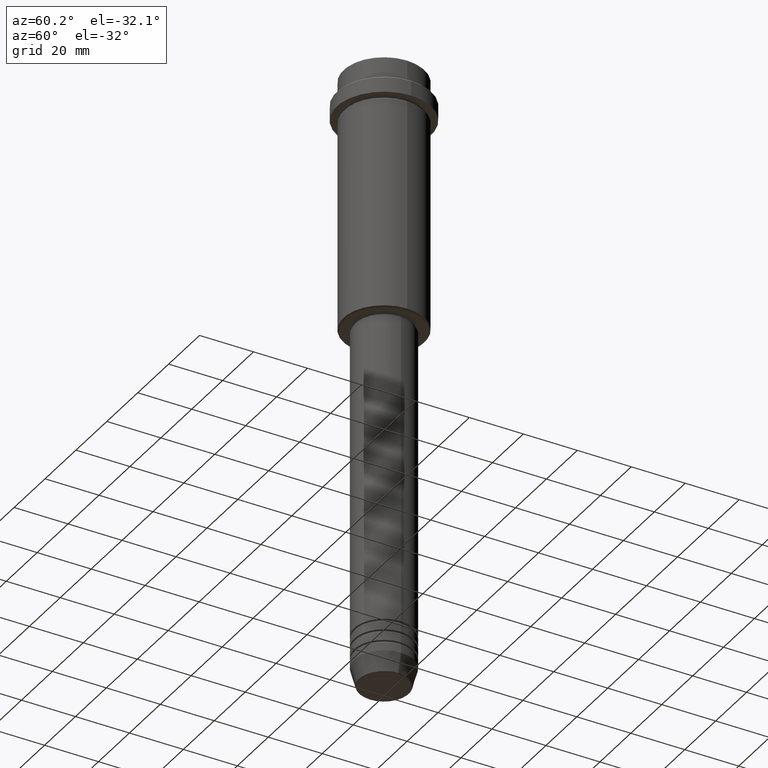
[diagram: clean part render]
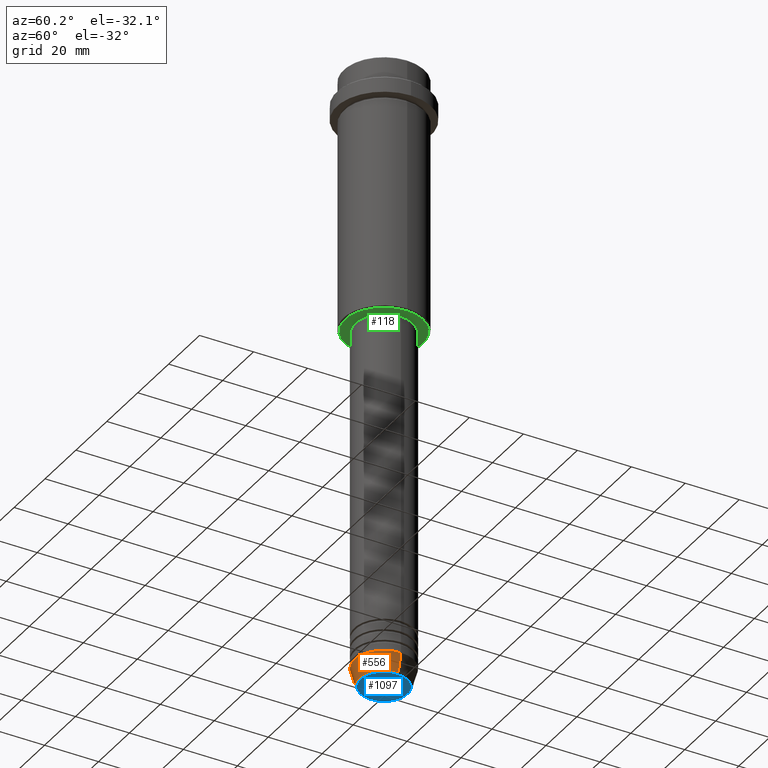
[diagram: same view with three faces highlighted in distinct colors, each labeled with its STEP entity id]
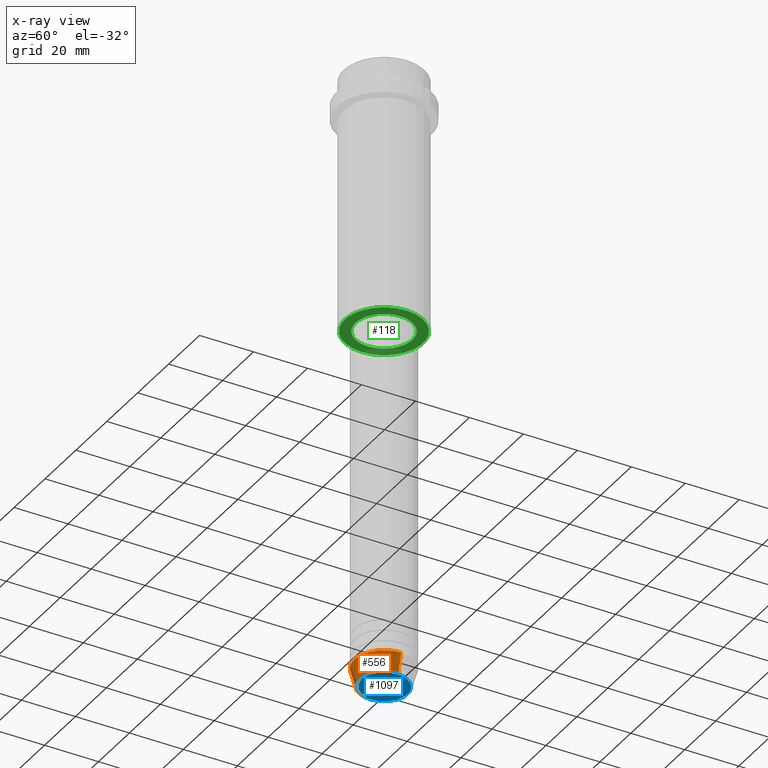
[diagram: x-ray of the same camera — body ghosted, the three highlighted faces saturated]
A machine part, auxiliary view with three faces highlighted in distinct colors.
The next image is the same camera in x-ray (body ghosted, the three faces saturated) — at least one of them is partly hidden behind the body in this view.
Their STEP definitions:

[orange] entity #556 — the highlighted conical surface has half-angle 15 deg.
#39 = AXIS2_PLACEMENT_3D ( 'NONE', #1291, #1159, #613 ) ;
#44 = AXIS2_PLACEMENT_3D ( 'NONE', #435, #95, #1314 ) ;
#95 = DIRECTION ( 'NONE',  ( -0.000000000000000000, -0.000000000000000000, 1.000000000000000000 ) ) ;
#148 = LINE ( 'NONE', #1361, #947 ) ;
#210 = CARTESIAN_POINT ( 'NONE',  ( -11.00000000000000000, 1.347111479062088405E-15, -222.9999999999999716 ) ) ;
#232 = CARTESIAN_POINT ( 'NONE',  ( -11.00000000000000000, 1.347111479062088405E-15, -222.9999999999999716 ) ) ;
#274 = CARTESIAN_POINT ( 'NONE',  ( 0.000000000000000000, 0.000000000000000000, -222.9999999999999716 ) ) ;
#383 = DIRECTION ( 'NONE',  ( 0.2588190451025213501, 0.000000000000000000, 0.9659258262890680902 ) ) ;
#417 = CARTESIAN_POINT ( 'NONE',  ( 9.223655072137189492, 0.000000000000000000, -229.6294095225512422 ) ) ;
#435 = CARTESIAN_POINT ( 'NONE',  ( 0.000000000000000000, 0.000000000000000000, -222.9999999999999716 ) ) ;
#457 = ORIENTED_EDGE ( 'NONE', *, *, #722, .T. ) ;
#466 = CIRCLE ( 'NONE', #39, 9.223655072137189492 ) ;
#482 = DIRECTION ( 'NONE',  ( -0.000000000000000000, -0.000000000000000000, 1.000000000000000000 ) ) ;
#556 = ADVANCED_FACE ( 'NONE', ( #1355 ), #1254, .T. ) ;
#565 = VERTEX_POINT ( 'NONE', #1164 ) ;
#613 = DIRECTION ( 'NONE',  ( 1.000000000000000000, 0.000000000000000000, 0.000000000000000000 ) ) ;
#618 = VERTEX_POINT ( 'NONE', #210 ) ;
#670 = EDGE_CURVE ( 'NONE', #1249, #671, #148, .T. ) ;
#671 = VERTEX_POINT ( 'NONE', #1264 ) ;
#685 = ORIENTED_EDGE ( 'NONE', *, *, #1275, .F. ) ;
#722 = EDGE_CURVE ( 'NONE', #565, #1249, #466, .T. ) ;
#740 = CIRCLE ( 'NONE', #44, 11.00000000000000000 ) ;
#808 = AXIS2_PLACEMENT_3D ( 'NONE', #274, #482, #1150 ) ;
#835 = EDGE_CURVE ( 'NONE', #565, #618, #1219, .T. ) ;
#943 = ORIENTED_EDGE ( 'NONE', *, *, #835, .F. ) ;
#947 = VECTOR ( 'NONE', #383, 1000.000000000000000 ) ;
#1010 = DIRECTION ( 'NONE',  ( -0.2588190451025213501, 3.169619151431772337E-17, 0.9659258262890680902 ) ) ;
#1042 = VECTOR ( 'NONE', #1010, 1000.000000000000000 ) ;
#1150 = DIRECTION ( 'NONE',  ( 1.000000000000000000, 0.000000000000000000, 0.000000000000000000 ) ) ;
#1159 = DIRECTION ( 'NONE',  ( -0.000000000000000000, -0.000000000000000000, 1.000000000000000000 ) ) ;
#1164 = CARTESIAN_POINT ( 'NONE',  ( -9.223655072137189492, 1.238341722557647202E-15, -229.6294095225512422 ) ) ;
#1219 = LINE ( 'NONE', #232, #1042 ) ;
#1249 = VERTEX_POINT ( 'NONE', #417 ) ;
#1254 = CONICAL_SURFACE ( 'NONE', #808, 11.00000000000000000, 0.2617993877991500740 ) ;
#1264 = CARTESIAN_POINT ( 'NONE',  ( 11.00000000000000000, 0.000000000000000000, -222.9999999999999716 ) ) ;
#1275 = EDGE_CURVE ( 'NONE', #618, #671, #740, .T. ) ;
#1282 = EDGE_LOOP ( 'NONE', ( #943, #457, #1304, #685 ) ) ;
#1291 = CARTESIAN_POINT ( 'NONE',  ( 0.000000000000000000, 0.000000000000000000, -229.6294095225512422 ) ) ;
#1304 = ORIENTED_EDGE ( 'NONE', *, *, #670, .T. ) ;
#1314 = DIRECTION ( 'NONE',  ( 1.000000000000000000, 0.000000000000000000, 0.000000000000000000 ) ) ;
#1355 = FACE_OUTER_BOUND ( 'NONE', #1282, .T. ) ;
#1361 = CARTESIAN_POINT ( 'NONE',  ( 11.00000000000000000, 0.000000000000000000, -222.9999999999999716 ) ) ;

[blue] entity #1097 — the highlighted planar face has unit normal (0, -0, 1).
#48 = CARTESIAN_POINT ( 'NONE',  ( 0.000000000000000000, 0.000000000000000000, -229.9999999999999716 ) ) ;
#49 = VERTEX_POINT ( 'NONE', #445 ) ;
#71 = AXIS2_PLACEMENT_3D ( 'NONE', #48, #1047, #620 ) ;
#93 = EDGE_CURVE ( 'NONE', #919, #49, #683, .T. ) ;
#103 = DIRECTION ( 'NONE',  ( 0.000000000000000000, 0.000000000000000000, -1.000000000000000000 ) ) ;
#195 = DIRECTION ( 'NONE',  ( 1.000000000000000000, 0.000000000000000000, 0.000000000000000000 ) ) ;
#215 = ORIENTED_EDGE ( 'NONE', *, *, #93, .T. ) ;
#297 = DIRECTION ( 'NONE',  ( 1.000000000000000000, 0.000000000000000000, 0.000000000000000000 ) ) ;
#302 = EDGE_LOOP ( 'NONE', ( #728, #215 ) ) ;
#359 = AXIS2_PLACEMENT_3D ( 'NONE', #858, #1295, #195 ) ;
#377 = AXIS2_PLACEMENT_3D ( 'NONE', #401, #103, #297 ) ;
#401 = CARTESIAN_POINT ( 'NONE',  ( 0.000000000000000000, 0.000000000000000000, -229.9999999999999716 ) ) ;
#445 = CARTESIAN_POINT ( 'NONE',  ( 8.740692158992656502, 0.000000000000000000, -229.9999999999999716 ) ) ;
#496 = CIRCLE ( 'NONE', #359, 8.740692158992656502 ) ;
#588 = FACE_OUTER_BOUND ( 'NONE', #302, .T. ) ;
#620 = DIRECTION ( 'NONE',  ( 1.000000000000000000, 0.000000000000000000, 0.000000000000000000 ) ) ;
#683 = CIRCLE ( 'NONE', #377, 8.740692158992656502 ) ;
#728 = ORIENTED_EDGE ( 'NONE', *, *, #1223, .T. ) ;
#858 = CARTESIAN_POINT ( 'NONE',  ( 0.000000000000000000, 0.000000000000000000, -229.9999999999999716 ) ) ;
#919 = VERTEX_POINT ( 'NONE', #1203 ) ;
#1047 = DIRECTION ( 'NONE',  ( 0.000000000000000000, -0.000000000000000000, 1.000000000000000000 ) ) ;
#1097 = ADVANCED_FACE ( 'NONE', ( #588 ), #1340, .F. ) ;
#1203 = CARTESIAN_POINT ( 'NONE',  ( -8.740692158992656502, 1.099999016768739653E-15, -229.9999999999999716 ) ) ;
#1223 = EDGE_CURVE ( 'NONE', #49, #919, #496, .T. ) ;
#1295 = DIRECTION ( 'NONE',  ( 0.000000000000000000, 0.000000000000000000, -1.000000000000000000 ) ) ;
#1340 = PLANE ( 'NONE',  #71 ) ;

[green] entity #118 — the highlighted planar face has unit normal (0, 0, -1).
#4 = DIRECTION ( 'NONE',  ( -0.000000000000000000, -0.000000000000000000, 1.000000000000000000 ) ) ;
#24 = VERTEX_POINT ( 'NONE', #1273 ) ;
#118 = ADVANCED_FACE ( 'NONE', ( #713, #1294 ), #343, .T. ) ;
#136 = AXIS2_PLACEMENT_3D ( 'NONE', #739, #495, #176 ) ;
#176 = DIRECTION ( 'NONE',  ( -1.000000000000000000, 0.000000000000000000, 0.000000000000000000 ) ) ;
#193 = CARTESIAN_POINT ( 'NONE',  ( 0.000000000000000000, 0.000000000000000000, -94.99999999999997158 ) ) ;
#204 = EDGE_CURVE ( 'NONE', #24, #866, #537, .T. ) ;
#224 = CIRCLE ( 'NONE', #1166, 10.49999999999999289 ) ;
#227 = EDGE_LOOP ( 'NONE', ( #966, #732 ) ) ;
#241 = AXIS2_PLACEMENT_3D ( 'NONE', #936, #592, #1051 ) ;
#303 = CARTESIAN_POINT ( 'NONE',  ( -14.49999999999995559, 1.806354028742343041E-15, -94.99999999999997158 ) ) ;
#342 = CARTESIAN_POINT ( 'NONE',  ( 14.49999999999995559, 0.000000000000000000, -94.99999999999997158 ) ) ;
#343 = PLANE ( 'NONE',  #1139 ) ;
#412 = DIRECTION ( 'NONE',  ( 0.000000000000000000, 0.000000000000000000, -1.000000000000000000 ) ) ;
#465 = CIRCLE ( 'NONE', #241, 14.49999999999995559 ) ;
#495 = DIRECTION ( 'NONE',  ( 0.000000000000000000, 0.000000000000000000, -1.000000000000000000 ) ) ;
#537 = CIRCLE ( 'NONE', #1344, 10.49999999999999289 ) ;
#554 = CARTESIAN_POINT ( 'NONE',  ( 0.000000000000000000, 15.00000000000000000, -94.99999999999997158 ) ) ;
#592 = DIRECTION ( 'NONE',  ( 0.000000000000000000, 0.000000000000000000, -1.000000000000000000 ) ) ;
#610 = VERTEX_POINT ( 'NONE', #303 ) ;
#629 = ORIENTED_EDGE ( 'NONE', *, *, #1195, .T. ) ;
#655 = EDGE_CURVE ( 'NONE', #843, #610, #465, .T. ) ;
#713 = FACE_OUTER_BOUND ( 'NONE', #846, .T. ) ;
#732 = ORIENTED_EDGE ( 'NONE', *, *, #204, .T. ) ;
#739 = CARTESIAN_POINT ( 'NONE',  ( 0.000000000000000000, 0.000000000000000000, -94.99999999999997158 ) ) ;
#764 = CIRCLE ( 'NONE', #136, 14.49999999999995559 ) ;
#843 = VERTEX_POINT ( 'NONE', #342 ) ;
#846 = EDGE_LOOP ( 'NONE', ( #983, #629 ) ) ;
#866 = VERTEX_POINT ( 'NONE', #1197 ) ;
#873 = CARTESIAN_POINT ( 'NONE',  ( 0.000000000000000000, 0.000000000000000000, -94.99999999999997158 ) ) ;
#936 = CARTESIAN_POINT ( 'NONE',  ( 0.000000000000000000, 0.000000000000000000, -94.99999999999997158 ) ) ;
#966 = ORIENTED_EDGE ( 'NONE', *, *, #1251, .T. ) ;
#980 = DIRECTION ( 'NONE',  ( -1.000000000000000000, 0.000000000000000000, -0.000000000000000000 ) ) ;
#983 = ORIENTED_EDGE ( 'NONE', *, *, #655, .T. ) ;
#1051 = DIRECTION ( 'NONE',  ( -1.000000000000000000, 0.000000000000000000, 0.000000000000000000 ) ) ;
#1096 = DIRECTION ( 'NONE',  ( 1.000000000000000000, 0.000000000000000000, 0.000000000000000000 ) ) ;
#1139 = AXIS2_PLACEMENT_3D ( 'NONE', #554, #412, #980 ) ;
#1166 = AXIS2_PLACEMENT_3D ( 'NONE', #873, #1321, #1096 ) ;
#1195 = EDGE_CURVE ( 'NONE', #610, #843, #764, .T. ) ;
#1197 = CARTESIAN_POINT ( 'NONE',  ( 10.49999999999999289, 0.000000000000000000, -94.99999999999997158 ) ) ;
#1251 = EDGE_CURVE ( 'NONE', #866, #24, #224, .T. ) ;
#1273 = CARTESIAN_POINT ( 'NONE',  ( -10.49999999999999289, 1.285879139104720042E-15, -94.99999999999997158 ) ) ;
#1294 = FACE_BOUND ( 'NONE', #227, .T. ) ;
#1321 = DIRECTION ( 'NONE',  ( -0.000000000000000000, -0.000000000000000000, 1.000000000000000000 ) ) ;
#1344 = AXIS2_PLACEMENT_3D ( 'NONE', #193, #4, #1389 ) ;
#1389 = DIRECTION ( 'NONE',  ( 1.000000000000000000, 0.000000000000000000, 0.000000000000000000 ) ) ;